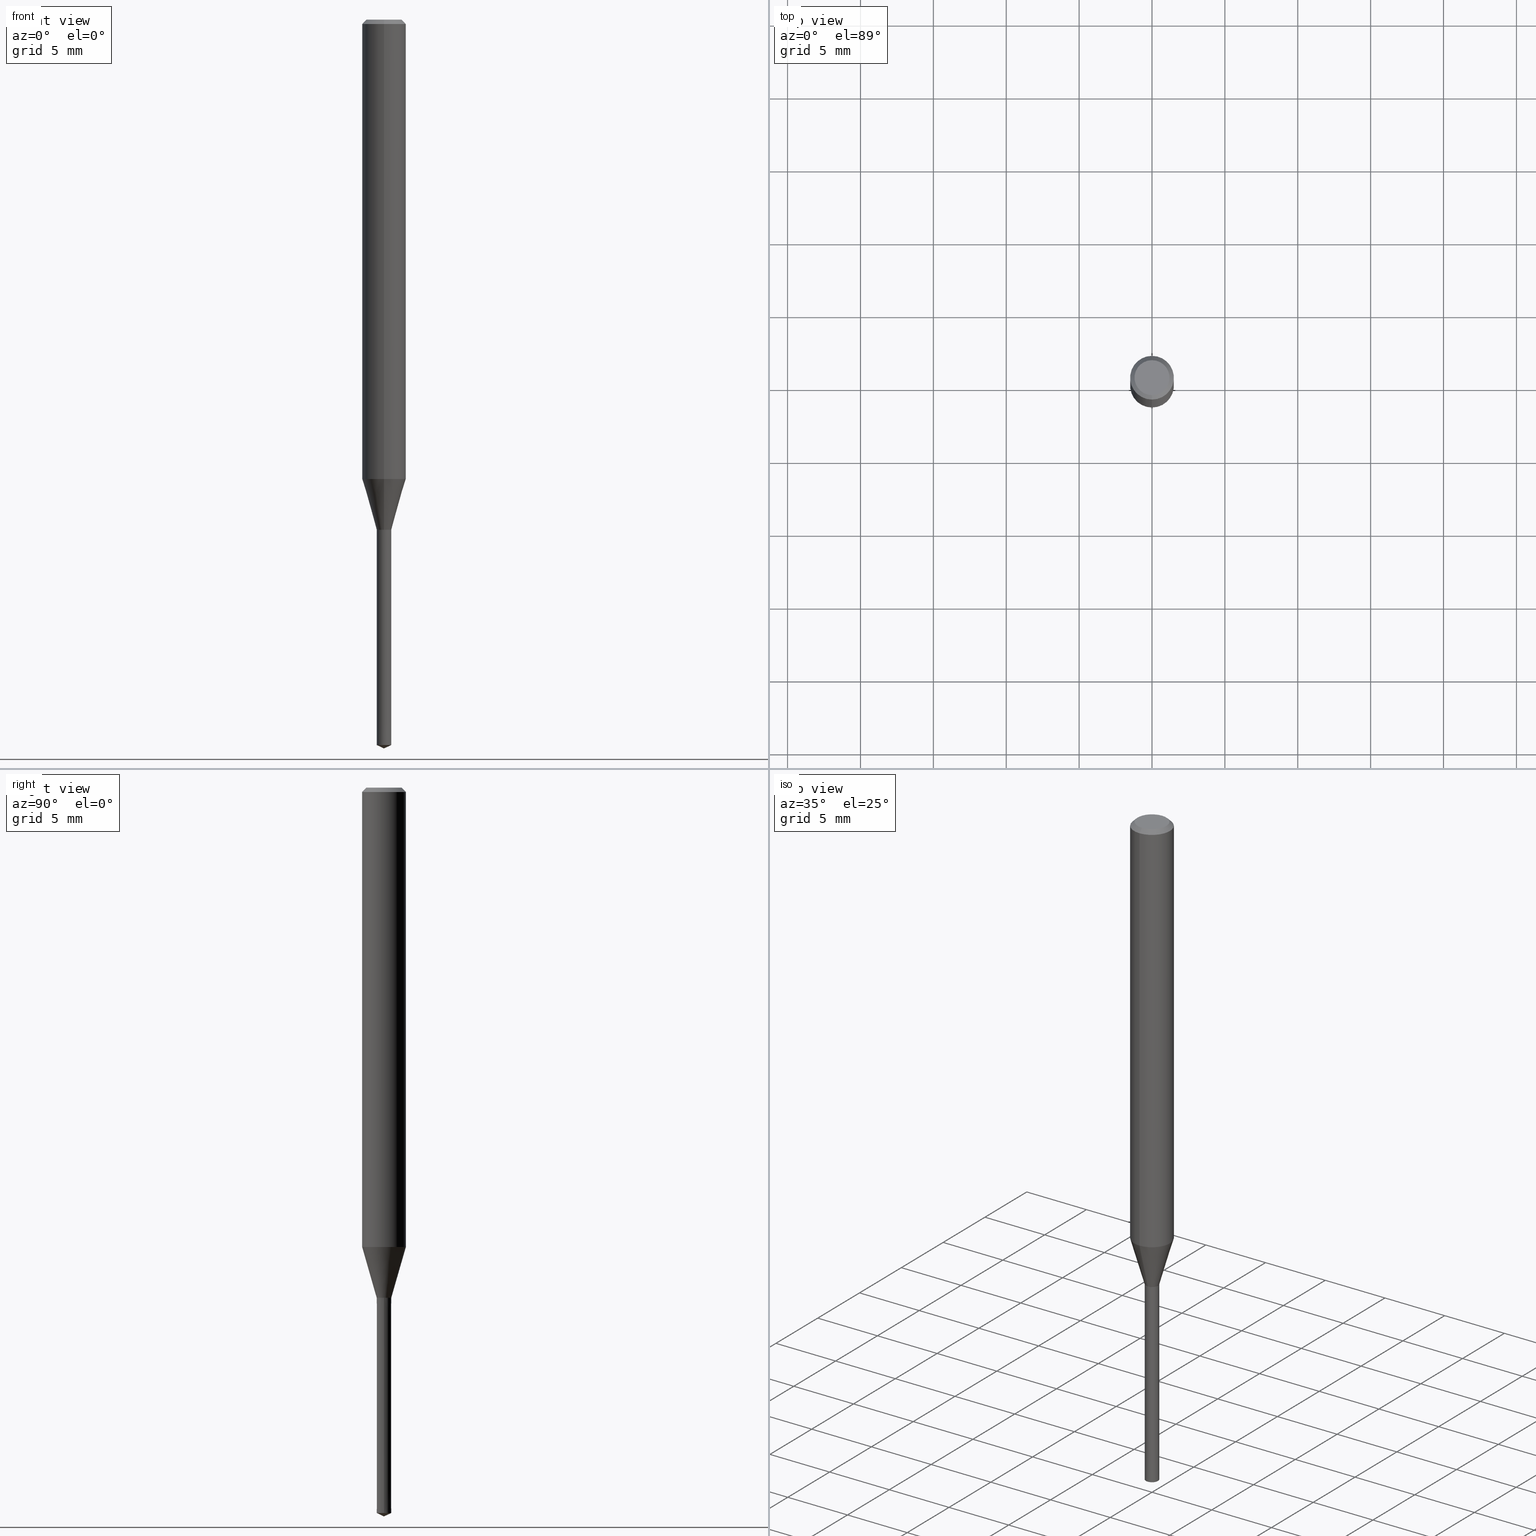
[diagram: canonical four-view strip — front | top / right | iso, engineering-drawing reading convention]
A machine part, canonical four-view strip (front | top / right | iso — engineering-drawing reading convention). The complete STEP part file that produces these views, byte-faithful:
ISO-10303-21;
HEADER;
FILE_DESCRIPTION(('no description'),'unknown implementation level');
FILE_NAME('UTDLX2100-150-Huellk.stp','  ',('CIMSOURCE GmbH'),('CADClick - KiM GmbH - www.kimweb.de'),'unknown preprocess','ACIS','unknown authorization');
FILE_SCHEMA(('automotive_design'));
ENDSEC;
DATA;
#1=MECHANICAL_DESIGN_GEOMETRIC_PRESENTATION_REPRESENTATION(' ',(#14,#15,#16,#17,#18,#19,#20,#21,#22,#23,#24,#25,#26,#27,#28,#29,#30,#31,#32,#33,#34,#35,#36,#37,#38,#39,#40,#41,#42,#43,#44,#45,#46,#47,#48,#49,#50,#51,#52,#53,#54,#55,#56,#57,#58,#59,#60,#61,#62,#63,#64,#65,#66,#67,#68,#69,#70,#71),#10);
#2=PRODUCT_DEFINITION_CONTEXT('',#72,'design');
#3=APPLICATION_PROTOCOL_DEFINITION('INTERNATIONAL STANDARD','automotive_design',1994,#72);
#4=PRODUCT_CATEGORY_RELATIONSHIP('NONE','NONE',#73,#74);
#5=SHAPE_DEFINITION_REPRESENTATION(#75,#76);
#6=PRODUCT_DEFINITION_CONTEXT('',#77,'design');
#7=APPLICATION_PROTOCOL_DEFINITION('INTERNATIONAL STANDARD','automotive_design',1994,#77);
#8=PRODUCT_CATEGORY_RELATIONSHIP('NONE','NONE',#78,#79);
#9=SHAPE_DEFINITION_REPRESENTATION(#80,#81);
#10= (GEOMETRIC_REPRESENTATION_CONTEXT(3)GLOBAL_UNCERTAINTY_ASSIGNED_CONTEXT((#84))GLOBAL_UNIT_ASSIGNED_CONTEXT((#86,#87,#88))REPRESENTATION_CONTEXT('NONE','WORKSPACE'));
#14=STYLED_ITEM('',(#90),#91);
#15=STYLED_ITEM('',(#92),#93);
#16=STYLED_ITEM('',(#94),#95);
#17=STYLED_ITEM('',(#96),#97);
#18=STYLED_ITEM('',(#98),#99);
#19=STYLED_ITEM('',(#100),#101);
#20=STYLED_ITEM('',(#102),#103);
#21=STYLED_ITEM('',(#104),#105);
#22=STYLED_ITEM('',(#106),#107);
#23=STYLED_ITEM('',(#108),#109);
#24=STYLED_ITEM('',(#110),#111);
#25=STYLED_ITEM('',(#112),#113);
#26=STYLED_ITEM('',(#114),#115);
#27=STYLED_ITEM('',(#116),#117);
#28=STYLED_ITEM('',(#118),#119);
#29=STYLED_ITEM('',(#120),#121);
#30=STYLED_ITEM('',(#122),#123);
#31=STYLED_ITEM('',(#124),#125);
#32=STYLED_ITEM('',(#126),#127);
#33=STYLED_ITEM('',(#128),#129);
#34=STYLED_ITEM('',(#130),#131);
#35=STYLED_ITEM('',(#132),#133);
#36=STYLED_ITEM('',(#134),#135);
#37=STYLED_ITEM('',(#136),#137);
#38=STYLED_ITEM('',(#138),#139);
#39=STYLED_ITEM('',(#140),#141);
#40=STYLED_ITEM('',(#142),#143);
#41=STYLED_ITEM('',(#144),#145);
#42=STYLED_ITEM('',(#146),#147);
#43=STYLED_ITEM('',(#148),#149);
#44=STYLED_ITEM('',(#150),#151);
#45=STYLED_ITEM('',(#152),#153);
#46=STYLED_ITEM('',(#154),#155);
#47=STYLED_ITEM('',(#156),#157);
#48=STYLED_ITEM('',(#158),#159);
#49=STYLED_ITEM('',(#160),#161);
#50=STYLED_ITEM('',(#162),#163);
#51=STYLED_ITEM('',(#164),#165);
#52=STYLED_ITEM('',(#166),#167);
#53=STYLED_ITEM('',(#168),#169);
#54=STYLED_ITEM('',(#170),#171);
#55=STYLED_ITEM('',(#172),#173);
#56=STYLED_ITEM('',(#174),#175);
#57=STYLED_ITEM('',(#176),#177);
#58=STYLED_ITEM('',(#178),#179);
#59=STYLED_ITEM('',(#180),#181);
#60=STYLED_ITEM('',(#182),#183);
#61=STYLED_ITEM('',(#184),#185);
#62=STYLED_ITEM('',(#186),#187);
#63=STYLED_ITEM('',(#188),#189);
#64=STYLED_ITEM('',(#190),#191);
#65=STYLED_ITEM('',(#192),#193);
#66=STYLED_ITEM('',(#194),#195);
#67=STYLED_ITEM('',(#196),#197);
#68=STYLED_ITEM('',(#198),#199);
#69=STYLED_ITEM('',(#200),#201);
#70=STYLED_ITEM('',(#202),#203);
#71=STYLED_ITEM('',(#204),#205);
#72=APPLICATION_CONTEXT(' ');
#73=PRODUCT_CATEGORY('part','NONE');
#74=PRODUCT_RELATED_PRODUCT_CATEGORY('detail',' ',(#206));
#75=PRODUCT_DEFINITION_SHAPE('NONE','NONE',#207);
#76=ADVANCED_BREP_SHAPE_REPRESENTATION('1',(#167,#208),#10);
#77=APPLICATION_CONTEXT(' ');
#78=PRODUCT_CATEGORY('part','NONE');
#79=PRODUCT_RELATED_PRODUCT_CATEGORY('detail',' ',(#209));
#80=PRODUCT_DEFINITION_SHAPE('NONE','NONE',#210);
#81=ADVANCED_BREP_SHAPE_REPRESENTATION('2',(#103,#211),#10);
#84=UNCERTAINTY_MEASURE_WITH_UNIT(LENGTH_MEASURE(1.0E-006),#86,'','');
#86= (CONVERSION_BASED_UNIT('MILLIMETRE',#214)LENGTH_UNIT()NAMED_UNIT(#217));
#87= (NAMED_UNIT(#219)PLANE_ANGLE_UNIT()SI_UNIT($,.RADIAN.));
#88= (NAMED_UNIT(#219)SOLID_ANGLE_UNIT()SI_UNIT($,.STERADIAN.));
#90=PRESENTATION_STYLE_ASSIGNMENT((#225));
#91=EDGE_CURVE('',#197,#183,#226,.T.);
#92=PRESENTATION_STYLE_ASSIGNMENT((#227));
#93=ADVANCED_FACE('',(#228),#229,.T.);
#94=PRESENTATION_STYLE_ASSIGNMENT((#230));
#95=EDGE_CURVE('',#141,#195,#231,.T.);
#96=PRESENTATION_STYLE_ASSIGNMENT((#232));
#97=VERTEX_POINT('',#233);
#98=PRESENTATION_STYLE_ASSIGNMENT((#234));
#99=EDGE_CURVE('',#107,#187,#235,.T.);
#100=PRESENTATION_STYLE_ASSIGNMENT((#236));
#101=ADVANCED_FACE('',(#237),#238,.T.);
#102=PRESENTATION_STYLE_ASSIGNMENT((#239));
#103=MANIFOLD_SOLID_BREP('2',#240);
#104=PRESENTATION_STYLE_ASSIGNMENT((#241));
#105=VERTEX_POINT('',#242);
#106=PRESENTATION_STYLE_ASSIGNMENT((#243));
#107=VERTEX_POINT('',#244);
#108=PRESENTATION_STYLE_ASSIGNMENT((#245));
#109=VERTEX_POINT('',#246);
#110=PRESENTATION_STYLE_ASSIGNMENT((#247));
#111=VERTEX_POINT('',#248);
#112=PRESENTATION_STYLE_ASSIGNMENT((#249));
#113=ADVANCED_FACE('',(#250),#251,.T.);
#114=PRESENTATION_STYLE_ASSIGNMENT((#252));
#115=ADVANCED_FACE('',(#253),#254,.T.);
#116=PRESENTATION_STYLE_ASSIGNMENT((#255));
#117=ADVANCED_FACE('',(#256),#257,.T.);
#118=PRESENTATION_STYLE_ASSIGNMENT((#258));
#119=ADVANCED_FACE('',(#259),#260,.T.);
#120=PRESENTATION_STYLE_ASSIGNMENT((#261));
#121=EDGE_CURVE('',#195,#171,#262,.T.);
#122=PRESENTATION_STYLE_ASSIGNMENT((#263));
#123=EDGE_CURVE('',#155,#107,#264,.T.);
#124=PRESENTATION_STYLE_ASSIGNMENT((#265));
#125=VERTEX_POINT('',#266);
#126=PRESENTATION_STYLE_ASSIGNMENT((#267));
#127=EDGE_CURVE('',#195,#165,#268,.T.);
#128=PRESENTATION_STYLE_ASSIGNMENT((#269));
#129=ADVANCED_FACE('',(#270),#271,.T.);
#130=PRESENTATION_STYLE_ASSIGNMENT((#272));
#131=EDGE_CURVE('',#141,#97,#273,.T.);
#132=PRESENTATION_STYLE_ASSIGNMENT((#274));
#133=EDGE_CURVE('',#109,#105,#275,.T.);
#134=PRESENTATION_STYLE_ASSIGNMENT((#276));
#135=EDGE_CURVE('',#165,#139,#277,.T.);
#136=PRESENTATION_STYLE_ASSIGNMENT((#278));
#137=EDGE_CURVE('',#111,#125,#279,.T.);
#138=PRESENTATION_STYLE_ASSIGNMENT((#280));
#139=VERTEX_POINT('',#281);
#140=PRESENTATION_STYLE_ASSIGNMENT((#282));
#141=VERTEX_POINT('',#283);
#142=PRESENTATION_STYLE_ASSIGNMENT((#284));
#143=EDGE_CURVE('',#183,#111,#285,.T.);
#144=PRESENTATION_STYLE_ASSIGNMENT((#286));
#145=ADVANCED_FACE('',(#287),#288,.T.);
#146=PRESENTATION_STYLE_ASSIGNMENT((#289));
#147=ADVANCED_FACE('',(#290),#291,.T.);
#148=PRESENTATION_STYLE_ASSIGNMENT((#292));
#149=EDGE_CURVE('',#171,#195,#293,.T.);
#150=PRESENTATION_STYLE_ASSIGNMENT((#294));
#151=ADVANCED_FACE('',(#295),#296,.T.);
#152=PRESENTATION_STYLE_ASSIGNMENT((#297));
#153=EDGE_CURVE('',#125,#197,#298,.T.);
#154=PRESENTATION_STYLE_ASSIGNMENT((#299));
#155=VERTEX_POINT('',#300);
#156=PRESENTATION_STYLE_ASSIGNMENT((#301));
#157=EDGE_CURVE('',#105,#109,#302,.T.);
#158=PRESENTATION_STYLE_ASSIGNMENT((#303));
#159=EDGE_CURVE('',#155,#187,#304,.T.);
#160=PRESENTATION_STYLE_ASSIGNMENT((#305));
#161=EDGE_CURVE('',#197,#139,#306,.T.);
#162=PRESENTATION_STYLE_ASSIGNMENT((#307));
#163=EDGE_CURVE('',#139,#171,#308,.T.);
#164=PRESENTATION_STYLE_ASSIGNMENT((#309));
#165=VERTEX_POINT('',#310);
#166=PRESENTATION_STYLE_ASSIGNMENT((#311));
#167=MANIFOLD_SOLID_BREP('1',#312);
#168=PRESENTATION_STYLE_ASSIGNMENT((#313));
#169=EDGE_CURVE('',#171,#97,#314,.T.);
#170=PRESENTATION_STYLE_ASSIGNMENT((#315));
#171=VERTEX_POINT('',#316);
#172=PRESENTATION_STYLE_ASSIGNMENT((#317));
#173=ADVANCED_FACE('',(#318),#319,.T.);
#174=PRESENTATION_STYLE_ASSIGNMENT((#320));
#175=EDGE_CURVE('',#125,#111,#321,.T.);
#176=PRESENTATION_STYLE_ASSIGNMENT((#322));
#177=EDGE_CURVE('',#187,#109,#323,.T.);
#178=PRESENTATION_STYLE_ASSIGNMENT((#324));
#179=ADVANCED_FACE('',(#325),#326,.T.);
#180=PRESENTATION_STYLE_ASSIGNMENT((#327));
#181=ADVANCED_FACE('',(#328),#329,.T.);
#182=PRESENTATION_STYLE_ASSIGNMENT((#330));
#183=VERTEX_POINT('',#331);
#184=PRESENTATION_STYLE_ASSIGNMENT((#332));
#185=EDGE_CURVE('',#139,#165,#333,.T.);
#186=PRESENTATION_STYLE_ASSIGNMENT((#334));
#187=VERTEX_POINT('',#335);
#188=PRESENTATION_STYLE_ASSIGNMENT((#336));
#189=ADVANCED_FACE('',(#337),#338,.T.);
#190=PRESENTATION_STYLE_ASSIGNMENT((#339));
#191=EDGE_CURVE('',#183,#197,#340,.T.);
#192=PRESENTATION_STYLE_ASSIGNMENT((#341));
#193=EDGE_CURVE('',#105,#155,#342,.T.);
#194=PRESENTATION_STYLE_ASSIGNMENT((#343));
#195=VERTEX_POINT('',#344);
#196=PRESENTATION_STYLE_ASSIGNMENT((#345));
#197=VERTEX_POINT('',#346);
#198=PRESENTATION_STYLE_ASSIGNMENT((#347));
#199=EDGE_CURVE('',#187,#155,#348,.T.);
#200=PRESENTATION_STYLE_ASSIGNMENT((#349));
#201=EDGE_CURVE('',#165,#183,#350,.T.);
#202=PRESENTATION_STYLE_ASSIGNMENT((#351));
#203=EDGE_CURVE('',#97,#141,#352,.T.);
#204=PRESENTATION_STYLE_ASSIGNMENT((#353));
#205=ADVANCED_FACE('',(#354),#355,.T.);
#206=PRODUCT('1','1','PART-1-DESC',(#356));
#207=PRODUCT_DEFINITION('NONE','NONE',#357,#2);
#208=AXIS2_PLACEMENT_3D('',#358,#359,#360);
#209=PRODUCT('2','2','PART-2-DESC',(#361));
#210=PRODUCT_DEFINITION('NONE','NONE',#362,#6);
#211=AXIS2_PLACEMENT_3D('',#363,#364,#365);
#214=LENGTH_MEASURE_WITH_UNIT(LENGTH_MEASURE(1.0),#366);
#217=DIMENSIONAL_EXPONENTS(1.0,0.0,0.0,0.0,0.0,0.0,0.0);
#219=DIMENSIONAL_EXPONENTS(0.0,0.0,0.0,0.0,0.0,0.0,0.0);
#225=CURVE_STYLE('',#367,POSITIVE_LENGTH_MEASURE(1.0E-006),#368);
#226=CIRCLE('',#369,1.5);
#227=SURFACE_STYLE_USAGE(.BOTH.,#370);
#228=FACE_OUTER_BOUND('',#371,.T.);
#229=CONICAL_SURFACE('',#372,1.0,0.279349998205856);
#230=CURVE_STYLE('',#373,POSITIVE_LENGTH_MEASURE(1.0E-006),#374);
#231=LINE('',#375,#376);
#232=POINT_STYLE(' ',#377,POSITIVE_LENGTH_MEASURE(1.0E-006),#378);
#233=CARTESIAN_POINT('',(0.0,0.5005,-35.0));
#234=CURVE_STYLE('',#379,POSITIVE_LENGTH_MEASURE(1.0E-006),#380);
#235=LINE('',#381,#382);
#236=SURFACE_STYLE_USAGE(.BOTH.,#383);
#237=FACE_OUTER_BOUND('',#384,.T.);
#238=CONICAL_SURFACE('',#385,0.25,1.13446401228084);
#239=SURFACE_STYLE_USAGE(.BOTH.,#386);
#240=CLOSED_SHELL('',(#173,#179,#151,#205,#101));
#241=POINT_STYLE(' ',#387,POSITIVE_LENGTH_MEASURE(1.0E-006),#388);
#242=CARTESIAN_POINT('',(-0.501,0.0,-35.0));
#243=POINT_STYLE(' ',#389,POSITIVE_LENGTH_MEASURE(1.0E-006),#390);
#244=CARTESIAN_POINT('',(0.0,0.0,-50.0));
#245=POINT_STYLE(' ',#391,POSITIVE_LENGTH_MEASURE(1.0E-006),#392);
#246=CARTESIAN_POINT('',(0.501,6.13527783265011E-017,-35.0));
#247=POINT_STYLE(' ',#393,POSITIVE_LENGTH_MEASURE(1.0E-006),#394);
#248=CARTESIAN_POINT('',(1.46952762458685E-016,-1.2,0.0));
#249=SURFACE_STYLE_USAGE(.BOTH.,#395);
#250=FACE_OUTER_BOUND('',#396,.T.);
#251=CONICAL_SURFACE('',#397,0.50025,0.52359877559836);
#252=SURFACE_STYLE_USAGE(.BOTH.,#398);
#253=FACE_OUTER_BOUND('',#399,.T.);
#254=CONICAL_SURFACE('',#400,0.50025,0.52359877559836);
#255=SURFACE_STYLE_USAGE(.BOTH.,#401);
#256=FACE_OUTER_BOUND('',#402,.T.);
#257=CONICAL_SURFACE('',#403,1.35,0.785398163397447);
#258=SURFACE_STYLE_USAGE(.BOTH.,#404);
#259=FACE_OUTER_BOUND('',#405,.T.);
#260=CYLINDRICAL_SURFACE('',#406,1.5);
#261=CURVE_STYLE('',#407,POSITIVE_LENGTH_MEASURE(1.0E-006),#408);
#262=CIRCLE('',#409,0.5);
#263=CURVE_STYLE('',#410,POSITIVE_LENGTH_MEASURE(1.0E-006),#411);
#264=LINE('',#412,#413);
#265=POINT_STYLE(' ',#414,POSITIVE_LENGTH_MEASURE(1.0E-006),#415);
#266=CARTESIAN_POINT('',(0.0,1.2,0.0));
#267=CURVE_STYLE('',#416,POSITIVE_LENGTH_MEASURE(1.0E-006),#417);
#268=LINE('',#418,#419);
#269=SURFACE_STYLE_USAGE(.BOTH.,#420);
#270=FACE_OUTER_BOUND('',#421,.T.);
#271=PLANE('',#422);
#272=CURVE_STYLE('',#423,POSITIVE_LENGTH_MEASURE(1.0E-006),#424);
#273=CIRCLE('',#425,0.5005);
#274=CURVE_STYLE('',#426,POSITIVE_LENGTH_MEASURE(1.0E-006),#427);
#275=CIRCLE('',#428,0.501);
#276=CURVE_STYLE('',#429,POSITIVE_LENGTH_MEASURE(1.0E-006),#430);
#277=CIRCLE('',#431,1.5);
#278=CURVE_STYLE('',#432,POSITIVE_LENGTH_MEASURE(1.0E-006),#433);
#279=CIRCLE('',#434,1.2);
#280=POINT_STYLE(' ',#435,POSITIVE_LENGTH_MEASURE(1.0E-006),#436);
#281=CARTESIAN_POINT('',(0.0,1.5,-31.513));
#282=POINT_STYLE(' ',#437,POSITIVE_LENGTH_MEASURE(1.0E-006),#438);
#283=CARTESIAN_POINT('',(6.129154800881E-017,-0.5005,-35.0));
#284=CURVE_STYLE('',#439,POSITIVE_LENGTH_MEASURE(1.0E-006),#440);
#285=LINE('',#441,#442);
#286=SURFACE_STYLE_USAGE(.BOTH.,#443);
#287=FACE_OUTER_BOUND('',#444,.T.);
#288=CYLINDRICAL_SURFACE('',#445,1.5);
#289=SURFACE_STYLE_USAGE(.BOTH.,#446);
#290=FACE_OUTER_BOUND('',#447,.T.);
#291=CONICAL_SURFACE('',#448,1.0,0.279349998205856);
#292=CURVE_STYLE('',#449,POSITIVE_LENGTH_MEASURE(1.0E-006),#450);
#293=CIRCLE('',#451,0.5);
#294=SURFACE_STYLE_USAGE(.BOTH.,#452);
#295=FACE_OUTER_BOUND('',#453,.T.);
#296=PLANE('',#454);
#297=CURVE_STYLE('',#455,POSITIVE_LENGTH_MEASURE(1.0E-006),#456);
#298=LINE('',#457,#458);
#299=POINT_STYLE(' ',#459,POSITIVE_LENGTH_MEASURE(1.0E-006),#460);
#300=CARTESIAN_POINT('',(-0.5,0.0,-49.76684617));
#301=CURVE_STYLE('',#461,POSITIVE_LENGTH_MEASURE(1.0E-006),#462);
#302=CIRCLE('',#463,0.501);
#303=CURVE_STYLE('',#464,POSITIVE_LENGTH_MEASURE(1.0E-006),#465);
#304=CIRCLE('',#466,0.5);
#305=CURVE_STYLE('',#467,POSITIVE_LENGTH_MEASURE(1.0E-006),#468);
#306=LINE('',#469,#470);
#307=CURVE_STYLE('',#471,POSITIVE_LENGTH_MEASURE(1.0E-006),#472);
#308=LINE('',#473,#474);
#309=POINT_STYLE(' ',#475,POSITIVE_LENGTH_MEASURE(1.0E-006),#476);
#310=CARTESIAN_POINT('',(1.83690953073357E-016,-1.5,-31.513));
#311=SURFACE_STYLE_USAGE(.BOTH.,#477);
#312=CLOSED_SHELL('',(#115,#147,#145,#181,#129,#117,#119,#93,#113,#189));
#313=CURVE_STYLE('',#478,POSITIVE_LENGTH_MEASURE(1.0E-006),#479);
#314=LINE('',#480,#481);
#315=POINT_STYLE(' ',#482,POSITIVE_LENGTH_MEASURE(1.0E-006),#483);
#316=CARTESIAN_POINT('',(0.0,0.5,-34.9991339745962));
#317=SURFACE_STYLE_USAGE(.BOTH.,#484);
#318=FACE_OUTER_BOUND('',#485,.T.);
#319=CONICAL_SURFACE('',#486,0.25,1.13446401228084);
#320=CURVE_STYLE('',#487,POSITIVE_LENGTH_MEASURE(1.0E-006),#488);
#321=CIRCLE('',#489,1.2);
#322=CURVE_STYLE('',#490,POSITIVE_LENGTH_MEASURE(1.0E-006),#491);
#323=LINE('',#492,#493);
#324=SURFACE_STYLE_USAGE(.BOTH.,#494);
#325=FACE_OUTER_BOUND('',#495,.T.);
#326=CONICAL_SURFACE('',#496,0.5005,6.77192669957479E-005);
#327=SURFACE_STYLE_USAGE(.BOTH.,#497);
#328=FACE_OUTER_BOUND('',#498,.T.);
#329=CONICAL_SURFACE('',#499,1.35,0.785398163397447);
#330=POINT_STYLE(' ',#500,POSITIVE_LENGTH_MEASURE(1.0E-006),#501);
#331=CARTESIAN_POINT('',(1.83690953073357E-016,-1.5,-0.300000000000001));
#332=CURVE_STYLE('',#502,POSITIVE_LENGTH_MEASURE(1.0E-006),#503);
#333=CIRCLE('',#504,1.5);
#334=POINT_STYLE(' ',#505,POSITIVE_LENGTH_MEASURE(1.0E-006),#506);
#335=CARTESIAN_POINT('',(0.5,6.12303176911189E-017,-49.76684617));
#336=SURFACE_STYLE_USAGE(.BOTH.,#507);
#337=FACE_OUTER_BOUND('',#508,.T.);
#338=PLANE('',#509);
#339=CURVE_STYLE('',#510,POSITIVE_LENGTH_MEASURE(1.0E-006),#511);
#340=CIRCLE('',#512,1.5);
#341=CURVE_STYLE('',#513,POSITIVE_LENGTH_MEASURE(1.0E-006),#514);
#342=LINE('',#515,#516);
#343=POINT_STYLE(' ',#517,POSITIVE_LENGTH_MEASURE(1.0E-006),#518);
#344=CARTESIAN_POINT('',(6.12303176911189E-017,-0.5,-34.9991339745962));
#345=POINT_STYLE(' ',#519,POSITIVE_LENGTH_MEASURE(1.0E-006),#520);
#346=CARTESIAN_POINT('',(0.0,1.5,-0.300000000000001));
#347=CURVE_STYLE('',#521,POSITIVE_LENGTH_MEASURE(1.0E-006),#522);
#348=CIRCLE('',#523,0.5);
#349=CURVE_STYLE('',#524,POSITIVE_LENGTH_MEASURE(1.0E-006),#525);
#350=LINE('',#526,#527);
#351=CURVE_STYLE('',#528,POSITIVE_LENGTH_MEASURE(1.0E-006),#529);
#352=CIRCLE('',#530,0.5005);
#353=SURFACE_STYLE_USAGE(.BOTH.,#531);
#354=FACE_OUTER_BOUND('',#532,.T.);
#355=CONICAL_SURFACE('',#533,0.5005,6.77192669957479E-005);
#356=PRODUCT_CONTEXT('',#72,'mechanical');
#357=PRODUCT_DEFINITION_FORMATION_WITH_SPECIFIED_SOURCE(' ','NONE',#206,.NOT_KNOWN.);
#358=CARTESIAN_POINT('',(0.0,0.0,0.0));
#359=DIRECTION('',(0.0,0.0,1.0));
#360=DIRECTION('',(1.0,0.0,0.0));
#361=PRODUCT_CONTEXT('',#77,'mechanical');
#362=PRODUCT_DEFINITION_FORMATION_WITH_SPECIFIED_SOURCE(' ','NONE',#209,.NOT_KNOWN.);
#363=CARTESIAN_POINT('',(0.0,0.0,0.0));
#364=DIRECTION('',(0.0,0.0,1.0));
#365=DIRECTION('',(1.0,0.0,0.0));
#366= (NAMED_UNIT(#217)LENGTH_UNIT()SI_UNIT(.MILLI.,.METRE.));
#367=DRAUGHTING_PRE_DEFINED_CURVE_FONT('continuous');
#368=COLOUR_RGB('',0.498039215803146,0.498039215803146,0.498039215803146);
#369=AXIS2_PLACEMENT_3D('',#535,#536,#537);
#370=SURFACE_SIDE_STYLE('',(#538));
#371=EDGE_LOOP('',(#539,#540,#541,#542));
#372=AXIS2_PLACEMENT_3D('',#543,#544,#545);
#373=DRAUGHTING_PRE_DEFINED_CURVE_FONT('continuous');
#374=COLOUR_RGB('',0.498039215803146,0.498039215803146,0.498039215803146);
#375=CARTESIAN_POINT('',(6.12609328499644E-017,-0.50025,-34.9995669872981));
#376=VECTOR('',#546,1.0);
#377=PRE_DEFINED_MARKER('');
#378=COLOUR_RGB('',0.498039215803146,0.498039215803146,0.498039215803146);
#379=DRAUGHTING_PRE_DEFINED_CURVE_FONT('continuous');
#380=COLOUR_RGB('',0.800000011920929,0.800000011920929,0.800000011920929);
#381=CARTESIAN_POINT('',(0.25,3.06151588455594E-017,-49.883423085));
#382=VECTOR('',#547,1.0);
#383=SURFACE_SIDE_STYLE('',(#548));
#384=EDGE_LOOP('',(#549,#550,#551));
#385=AXIS2_PLACEMENT_3D('',#552,#553,#554);
#386=SURFACE_SIDE_STYLE('',(#555));
#387=PRE_DEFINED_MARKER('');
#388=COLOUR_RGB('',0.800000011920929,0.800000011920929,0.800000011920929);
#389=PRE_DEFINED_MARKER('');
#390=COLOUR_RGB('',0.800000011920929,0.800000011920929,0.800000011920929);
#391=PRE_DEFINED_MARKER('');
#392=COLOUR_RGB('',0.800000011920929,0.800000011920929,0.800000011920929);
#393=PRE_DEFINED_MARKER('');
#394=COLOUR_RGB('',0.498039215803146,0.498039215803146,0.498039215803146);
#395=SURFACE_SIDE_STYLE('',(#556));
#396=EDGE_LOOP('',(#557,#558,#559,#560));
#397=AXIS2_PLACEMENT_3D('',#561,#562,#563);
#398=SURFACE_SIDE_STYLE('',(#564));
#399=EDGE_LOOP('',(#565,#566,#567,#568));
#400=AXIS2_PLACEMENT_3D('',#569,#570,#571);
#401=SURFACE_SIDE_STYLE('',(#572));
#402=EDGE_LOOP('',(#573,#574,#575,#576));
#403=AXIS2_PLACEMENT_3D('',#577,#578,#579);
#404=SURFACE_SIDE_STYLE('',(#580));
#405=EDGE_LOOP('',(#581,#582,#583,#584));
#406=AXIS2_PLACEMENT_3D('',#585,#586,#587);
#407=DRAUGHTING_PRE_DEFINED_CURVE_FONT('continuous');
#408=COLOUR_RGB('',0.498039215803146,0.498039215803146,0.498039215803146);
#409=AXIS2_PLACEMENT_3D('',#588,#589,#590);
#410=DRAUGHTING_PRE_DEFINED_CURVE_FONT('continuous');
#411=COLOUR_RGB('',0.800000011920929,0.800000011920929,0.800000011920929);
#412=CARTESIAN_POINT('',(-0.25,-3.06151588455594E-017,-49.883423085));
#413=VECTOR('',#591,1.0);
#414=PRE_DEFINED_MARKER('');
#415=COLOUR_RGB('',0.498039215803146,0.498039215803146,0.498039215803146);
#416=DRAUGHTING_PRE_DEFINED_CURVE_FONT('continuous');
#417=COLOUR_RGB('',0.498039215803146,0.498039215803146,0.498039215803146);
#418=CARTESIAN_POINT('',(1.22460635382238E-016,-1.0,-33.2560669872981));
#419=VECTOR('',#592,1.0);
#420=SURFACE_SIDE_STYLE('',(#593));
#421=EDGE_LOOP('',(#594,#595));
#422=AXIS2_PLACEMENT_3D('',#596,#597,#598);
#423=DRAUGHTING_PRE_DEFINED_CURVE_FONT('continuous');
#424=COLOUR_RGB('',0.498039215803146,0.498039215803146,0.498039215803146);
#425=AXIS2_PLACEMENT_3D('',#599,#600,#601);
#426=DRAUGHTING_PRE_DEFINED_CURVE_FONT('continuous');
#427=COLOUR_RGB('',0.800000011920929,0.800000011920929,0.800000011920929);
#428=AXIS2_PLACEMENT_3D('',#602,#603,#604);
#429=DRAUGHTING_PRE_DEFINED_CURVE_FONT('continuous');
#430=COLOUR_RGB('',0.498039215803146,0.498039215803146,0.498039215803146);
#431=AXIS2_PLACEMENT_3D('',#605,#606,#607);
#432=DRAUGHTING_PRE_DEFINED_CURVE_FONT('continuous');
#433=COLOUR_RGB('',0.498039215803146,0.498039215803146,0.498039215803146);
#434=AXIS2_PLACEMENT_3D('',#608,#609,#610);
#435=PRE_DEFINED_MARKER('');
#436=COLOUR_RGB('',0.498039215803146,0.498039215803146,0.498039215803146);
#437=PRE_DEFINED_MARKER('');
#438=COLOUR_RGB('',0.498039215803146,0.498039215803146,0.498039215803146);
#439=DRAUGHTING_PRE_DEFINED_CURVE_FONT('continuous');
#440=COLOUR_RGB('',0.498039215803146,0.498039215803146,0.498039215803146);
#441=CARTESIAN_POINT('',(1.65321857766021E-016,-1.35,-0.150000000000002));
#442=VECTOR('',#611,1.0);
#443=SURFACE_SIDE_STYLE('',(#612));
#444=EDGE_LOOP('',(#613,#614,#615,#616));
#445=AXIS2_PLACEMENT_3D('',#617,#618,#619);
#446=SURFACE_SIDE_STYLE('',(#620));
#447=EDGE_LOOP('',(#621,#622,#623,#624));
#448=AXIS2_PLACEMENT_3D('',#625,#626,#627);
#449=DRAUGHTING_PRE_DEFINED_CURVE_FONT('continuous');
#450=COLOUR_RGB('',0.498039215803146,0.498039215803146,0.498039215803146);
#451=AXIS2_PLACEMENT_3D('',#628,#629,#630);
#452=SURFACE_SIDE_STYLE('',(#631));
#453=EDGE_LOOP('',(#632,#633));
#454=AXIS2_PLACEMENT_3D('',#634,#635,#636);
#455=DRAUGHTING_PRE_DEFINED_CURVE_FONT('continuous');
#456=COLOUR_RGB('',0.498039215803146,0.498039215803146,0.498039215803146);
#457=CARTESIAN_POINT('',(-1.65321857766021E-016,1.35,-0.150000000000002));
#458=VECTOR('',#637,1.0);
#459=PRE_DEFINED_MARKER('');
#460=COLOUR_RGB('',0.800000011920929,0.800000011920929,0.800000011920929);
#461=DRAUGHTING_PRE_DEFINED_CURVE_FONT('continuous');
#462=COLOUR_RGB('',0.800000011920929,0.800000011920929,0.800000011920929);
#463=AXIS2_PLACEMENT_3D('',#638,#639,#640);
#464=DRAUGHTING_PRE_DEFINED_CURVE_FONT('continuous');
#465=COLOUR_RGB('',0.800000011920929,0.800000011920929,0.800000011920929);
#466=AXIS2_PLACEMENT_3D('',#641,#642,#643);
#467=DRAUGHTING_PRE_DEFINED_CURVE_FONT('continuous');
#468=COLOUR_RGB('',0.498039215803146,0.498039215803146,0.498039215803146);
#469=CARTESIAN_POINT('',(-1.83690953073357E-016,1.5,-15.9065));
#470=VECTOR('',#644,1.0);
#471=DRAUGHTING_PRE_DEFINED_CURVE_FONT('continuous');
#472=COLOUR_RGB('',0.498039215803146,0.498039215803146,0.498039215803146);
#473=CARTESIAN_POINT('',(-1.22460635382238E-016,1.0,-33.2560669872981));
#474=VECTOR('',#645,1.0);
#475=PRE_DEFINED_MARKER('');
#476=COLOUR_RGB('',0.498039215803146,0.498039215803146,0.498039215803146);
#477=SURFACE_SIDE_STYLE('',(#646));
#478=DRAUGHTING_PRE_DEFINED_CURVE_FONT('continuous');
#479=COLOUR_RGB('',0.498039215803146,0.498039215803146,0.498039215803146);
#480=CARTESIAN_POINT('',(-6.12609328499644E-017,0.50025,-34.9995669872981));
#481=VECTOR('',#647,1.0);
#482=PRE_DEFINED_MARKER('');
#483=COLOUR_RGB('',0.498039215803146,0.498039215803146,0.498039215803146);
#484=SURFACE_SIDE_STYLE('',(#648));
#485=EDGE_LOOP('',(#649,#650,#651));
#486=AXIS2_PLACEMENT_3D('',#652,#653,#654);
#487=DRAUGHTING_PRE_DEFINED_CURVE_FONT('continuous');
#488=COLOUR_RGB('',0.498039215803146,0.498039215803146,0.498039215803146);
#489=AXIS2_PLACEMENT_3D('',#655,#656,#657);
#490=DRAUGHTING_PRE_DEFINED_CURVE_FONT('continuous');
#491=COLOUR_RGB('',0.800000011920929,0.800000011920929,0.800000011920929);
#492=CARTESIAN_POINT('',(0.5005,6.129154800881E-017,-42.383423085));
#493=VECTOR('',#658,1.0);
#494=SURFACE_SIDE_STYLE('',(#659));
#495=EDGE_LOOP('',(#660,#661,#662,#663));
#496=AXIS2_PLACEMENT_3D('',#664,#665,#666);
#497=SURFACE_SIDE_STYLE('',(#667));
#498=EDGE_LOOP('',(#668,#669,#670,#671));
#499=AXIS2_PLACEMENT_3D('',#672,#673,#674);
#500=PRE_DEFINED_MARKER('');
#501=COLOUR_RGB('',0.498039215803146,0.498039215803146,0.498039215803146);
#502=DRAUGHTING_PRE_DEFINED_CURVE_FONT('continuous');
#503=COLOUR_RGB('',0.498039215803146,0.498039215803146,0.498039215803146);
#504=AXIS2_PLACEMENT_3D('',#675,#676,#677);
#505=PRE_DEFINED_MARKER('');
#506=COLOUR_RGB('',0.800000011920929,0.800000011920929,0.800000011920929);
#507=SURFACE_SIDE_STYLE('',(#678));
#508=EDGE_LOOP('',(#679,#680));
#509=AXIS2_PLACEMENT_3D('',#681,#682,#683);
#510=DRAUGHTING_PRE_DEFINED_CURVE_FONT('continuous');
#511=COLOUR_RGB('',0.498039215803146,0.498039215803146,0.498039215803146);
#512=AXIS2_PLACEMENT_3D('',#684,#685,#686);
#513=DRAUGHTING_PRE_DEFINED_CURVE_FONT('continuous');
#514=COLOUR_RGB('',0.800000011920929,0.800000011920929,0.800000011920929);
#515=CARTESIAN_POINT('',(-0.5005,-6.129154800881E-017,-42.383423085));
#516=VECTOR('',#687,1.0);
#517=PRE_DEFINED_MARKER('');
#518=COLOUR_RGB('',0.498039215803146,0.498039215803146,0.498039215803146);
#519=PRE_DEFINED_MARKER('');
#520=COLOUR_RGB('',0.498039215803146,0.498039215803146,0.498039215803146);
#521=DRAUGHTING_PRE_DEFINED_CURVE_FONT('continuous');
#522=COLOUR_RGB('',0.800000011920929,0.800000011920929,0.800000011920929);
#523=AXIS2_PLACEMENT_3D('',#688,#689,#690);
#524=DRAUGHTING_PRE_DEFINED_CURVE_FONT('continuous');
#525=COLOUR_RGB('',0.498039215803146,0.498039215803146,0.498039215803146);
#526=CARTESIAN_POINT('',(1.83690953073357E-016,-1.5,-15.9065));
#527=VECTOR('',#691,1.0);
#528=DRAUGHTING_PRE_DEFINED_CURVE_FONT('continuous');
#529=COLOUR_RGB('',0.498039215803146,0.498039215803146,0.498039215803146);
#530=AXIS2_PLACEMENT_3D('',#692,#693,#694);
#531=SURFACE_SIDE_STYLE('',(#695));
#532=EDGE_LOOP('',(#696,#697,#698,#699));
#533=AXIS2_PLACEMENT_3D('',#700,#701,#702);
#535=CARTESIAN_POINT('',(0.0,0.0,-0.300000000000001));
#536=DIRECTION('',(0.0,0.0,-1.0));
#537=DIRECTION('',(0.0,1.0,0.0));
#538=SURFACE_STYLE_FILL_AREA(#703);
#539=ORIENTED_EDGE('',*,*,#163,.T.);
#540=ORIENTED_EDGE('',*,*,#121,.F.);
#541=ORIENTED_EDGE('',*,*,#127,.T.);
#542=ORIENTED_EDGE('',*,*,#135,.T.);
#543=CARTESIAN_POINT('',(0.0,0.0,-33.2560669872981));
#544=DIRECTION('',(-0.0,-0.0,1.0));
#545=DIRECTION('',(0.0,1.0,0.0));
#546=DIRECTION('',(-6.12303176911254E-017,0.500000000000053,0.866025403784408));
#547=DIRECTION('',(0.906307786396184,1.10987027373946E-016,0.422618263114183));
#548=SURFACE_STYLE_FILL_AREA(#704);
#549=ORIENTED_EDGE('',*,*,#99,.T.);
#550=ORIENTED_EDGE('',*,*,#199,.T.);
#551=ORIENTED_EDGE('',*,*,#123,.T.);
#552=CARTESIAN_POINT('',(0.0,0.0,-49.883423085));
#553=DIRECTION('',(-0.0,-0.0,1.0));
#554=DIRECTION('',(-1.0,0.0,0.0));
#555=SURFACE_STYLE_FILL_AREA(#705);
#556=SURFACE_STYLE_FILL_AREA(#706);
#557=ORIENTED_EDGE('',*,*,#169,.T.);
#558=ORIENTED_EDGE('',*,*,#131,.F.);
#559=ORIENTED_EDGE('',*,*,#95,.T.);
#560=ORIENTED_EDGE('',*,*,#121,.T.);
#561=CARTESIAN_POINT('',(0.0,0.0,-34.9995669872981));
#562=DIRECTION('',(0.0,-0.0,-1.0));
#563=DIRECTION('',(0.0,1.0,0.0));
#564=SURFACE_STYLE_FILL_AREA(#707);
#565=ORIENTED_EDGE('',*,*,#169,.F.);
#566=ORIENTED_EDGE('',*,*,#149,.T.);
#567=ORIENTED_EDGE('',*,*,#95,.F.);
#568=ORIENTED_EDGE('',*,*,#203,.F.);
#569=CARTESIAN_POINT('',(0.0,0.0,-34.9995669872981));
#570=DIRECTION('',(0.0,-0.0,-1.0));
#571=DIRECTION('',(0.0,1.0,0.0));
#572=SURFACE_STYLE_FILL_AREA(#708);
#573=ORIENTED_EDGE('',*,*,#153,.T.);
#574=ORIENTED_EDGE('',*,*,#191,.F.);
#575=ORIENTED_EDGE('',*,*,#143,.T.);
#576=ORIENTED_EDGE('',*,*,#137,.T.);
#577=CARTESIAN_POINT('',(0.0,0.0,-0.150000000000002));
#578=DIRECTION('',(0.0,-0.0,-1.0));
#579=DIRECTION('',(0.0,1.0,0.0));
#580=SURFACE_STYLE_FILL_AREA(#709);
#581=ORIENTED_EDGE('',*,*,#161,.T.);
#582=ORIENTED_EDGE('',*,*,#135,.F.);
#583=ORIENTED_EDGE('',*,*,#201,.T.);
#584=ORIENTED_EDGE('',*,*,#191,.T.);
#585=CARTESIAN_POINT('',(0.0,0.0,-15.9065));
#586=DIRECTION('',(-0.0,-0.0,1.0));
#587=DIRECTION('',(0.0,1.0,0.0));
#588=CARTESIAN_POINT('',(0.0,0.0,-34.9991339745962));
#589=DIRECTION('',(0.0,0.0,-1.0));
#590=DIRECTION('',(0.0,1.0,0.0));
#591=DIRECTION('',(0.906307786396184,1.10987027373946E-016,-0.422618263114183));
#592=DIRECTION('',(3.37661815108076E-017,-0.275730902468478,0.961234866941435));
#593=SURFACE_STYLE_FILL_AREA(#710);
#594=ORIENTED_EDGE('',*,*,#175,.F.);
#595=ORIENTED_EDGE('',*,*,#137,.F.);
#596=CARTESIAN_POINT('',(0.0,0.6,0.0));
#597=DIRECTION('',(-0.0,0.0,1.0));
#598=DIRECTION('',(0.0,-1.0,0.0));
#599=CARTESIAN_POINT('',(0.0,0.0,-35.0));
#600=DIRECTION('',(0.0,0.0,-1.0));
#601=DIRECTION('',(0.0,1.0,0.0));
#602=CARTESIAN_POINT('',(0.0,0.0,-35.0));
#603=DIRECTION('',(0.0,0.0,-1.0));
#604=DIRECTION('',(-1.0,0.0,0.0));
#605=CARTESIAN_POINT('',(0.0,0.0,-31.513));
#606=DIRECTION('',(0.0,0.0,-1.0));
#607=DIRECTION('',(0.0,1.0,0.0));
#608=CARTESIAN_POINT('',(0.0,0.0,0.0));
#609=DIRECTION('',(0.0,0.0,-1.0));
#610=DIRECTION('',(0.0,1.0,0.0));
#611=DIRECTION('',(-8.65927457071934E-017,0.707106781186546,0.707106781186549));
#612=SURFACE_STYLE_FILL_AREA(#711);
#613=ORIENTED_EDGE('',*,*,#161,.F.);
#614=ORIENTED_EDGE('',*,*,#91,.T.);
#615=ORIENTED_EDGE('',*,*,#201,.F.);
#616=ORIENTED_EDGE('',*,*,#185,.F.);
#617=CARTESIAN_POINT('',(0.0,0.0,-15.9065));
#618=DIRECTION('',(-0.0,-0.0,1.0));
#619=DIRECTION('',(0.0,1.0,0.0));
#620=SURFACE_STYLE_FILL_AREA(#712);
#621=ORIENTED_EDGE('',*,*,#163,.F.);
#622=ORIENTED_EDGE('',*,*,#185,.T.);
#623=ORIENTED_EDGE('',*,*,#127,.F.);
#624=ORIENTED_EDGE('',*,*,#149,.F.);
#625=CARTESIAN_POINT('',(0.0,0.0,-33.2560669872981));
#626=DIRECTION('',(-0.0,-0.0,1.0));
#627=DIRECTION('',(0.0,1.0,0.0));
#628=CARTESIAN_POINT('',(0.0,0.0,-34.9991339745962));
#629=DIRECTION('',(0.0,0.0,-1.0));
#630=DIRECTION('',(0.0,1.0,0.0));
#631=SURFACE_STYLE_FILL_AREA(#713);
#632=ORIENTED_EDGE('',*,*,#157,.F.);
#633=ORIENTED_EDGE('',*,*,#133,.F.);
#634=CARTESIAN_POINT('',(-0.2505,0.0,-35.0));
#635=DIRECTION('',(0.0,0.0,1.0));
#636=DIRECTION('',(1.0,0.0,0.0));
#637=DIRECTION('',(-8.65927457071934E-017,0.707106781186546,-0.707106781186549));
#638=CARTESIAN_POINT('',(0.0,0.0,-35.0));
#639=DIRECTION('',(0.0,0.0,-1.0));
#640=DIRECTION('',(-1.0,0.0,0.0));
#641=CARTESIAN_POINT('',(0.0,0.0,-49.76684617));
#642=DIRECTION('',(0.0,0.0,-1.0));
#643=DIRECTION('',(-1.0,0.0,0.0));
#644=DIRECTION('',(0.0,0.0,-1.0));
#645=DIRECTION('',(3.37661815108076E-017,-0.275730902468478,-0.961234866941435));
#646=SURFACE_STYLE_FILL_AREA(#714);
#647=DIRECTION('',(-6.12303176911254E-017,0.500000000000053,-0.866025403784408));
#648=SURFACE_STYLE_FILL_AREA(#715);
#649=ORIENTED_EDGE('',*,*,#99,.F.);
#650=ORIENTED_EDGE('',*,*,#123,.F.);
#651=ORIENTED_EDGE('',*,*,#159,.T.);
#652=CARTESIAN_POINT('',(0.0,0.0,-49.883423085));
#653=DIRECTION('',(-0.0,-0.0,1.0));
#654=DIRECTION('',(-1.0,0.0,0.0));
#655=CARTESIAN_POINT('',(0.0,0.0,0.0));
#656=DIRECTION('',(0.0,0.0,-1.0));
#657=DIRECTION('',(0.0,1.0,0.0));
#658=DIRECTION('',(6.7719266943989E-005,8.29294445758026E-021,0.999999997707051));
#659=SURFACE_STYLE_FILL_AREA(#716);
#660=ORIENTED_EDGE('',*,*,#193,.F.);
#661=ORIENTED_EDGE('',*,*,#157,.T.);
#662=ORIENTED_EDGE('',*,*,#177,.F.);
#663=ORIENTED_EDGE('',*,*,#159,.F.);
#664=CARTESIAN_POINT('',(0.0,0.0,-42.383423085));
#665=DIRECTION('',(-0.0,-0.0,1.0));
#666=DIRECTION('',(-1.0,0.0,0.0));
#667=SURFACE_STYLE_FILL_AREA(#717);
#668=ORIENTED_EDGE('',*,*,#153,.F.);
#669=ORIENTED_EDGE('',*,*,#175,.T.);
#670=ORIENTED_EDGE('',*,*,#143,.F.);
#671=ORIENTED_EDGE('',*,*,#91,.F.);
#672=CARTESIAN_POINT('',(0.0,0.0,-0.150000000000002));
#673=DIRECTION('',(0.0,-0.0,-1.0));
#674=DIRECTION('',(0.0,1.0,0.0));
#675=CARTESIAN_POINT('',(0.0,0.0,-31.513));
#676=DIRECTION('',(0.0,0.0,-1.0));
#677=DIRECTION('',(0.0,1.0,0.0));
#678=SURFACE_STYLE_FILL_AREA(#718);
#679=ORIENTED_EDGE('',*,*,#203,.T.);
#680=ORIENTED_EDGE('',*,*,#131,.T.);
#681=CARTESIAN_POINT('',(0.0,0.25025,-35.0));
#682=DIRECTION('',(0.0,0.0,-1.0));
#683=DIRECTION('',(0.0,1.0,0.0));
#684=CARTESIAN_POINT('',(0.0,0.0,-0.300000000000001));
#685=DIRECTION('',(0.0,0.0,-1.0));
#686=DIRECTION('',(0.0,1.0,0.0));
#687=DIRECTION('',(6.7719266943989E-005,8.29294445758026E-021,-0.999999997707051));
#688=CARTESIAN_POINT('',(0.0,0.0,-49.76684617));
#689=DIRECTION('',(0.0,0.0,-1.0));
#690=DIRECTION('',(-1.0,0.0,0.0));
#691=DIRECTION('',(-0.0,-0.0,1.0));
#692=CARTESIAN_POINT('',(0.0,0.0,-35.0));
#693=DIRECTION('',(0.0,0.0,-1.0));
#694=DIRECTION('',(0.0,1.0,0.0));
#695=SURFACE_STYLE_FILL_AREA(#719);
#696=ORIENTED_EDGE('',*,*,#193,.T.);
#697=ORIENTED_EDGE('',*,*,#199,.F.);
#698=ORIENTED_EDGE('',*,*,#177,.T.);
#699=ORIENTED_EDGE('',*,*,#133,.T.);
#700=CARTESIAN_POINT('',(0.0,0.0,-42.383423085));
#701=DIRECTION('',(-0.0,-0.0,1.0));
#702=DIRECTION('',(-1.0,0.0,0.0));
#703=FILL_AREA_STYLE('',(#720));
#704=FILL_AREA_STYLE('',(#721));
#705=FILL_AREA_STYLE('',(#722));
#706=FILL_AREA_STYLE('',(#723));
#707=FILL_AREA_STYLE('',(#724));
#708=FILL_AREA_STYLE('',(#725));
#709=FILL_AREA_STYLE('',(#726));
#710=FILL_AREA_STYLE('',(#727));
#711=FILL_AREA_STYLE('',(#728));
#712=FILL_AREA_STYLE('',(#729));
#713=FILL_AREA_STYLE('',(#730));
#714=FILL_AREA_STYLE('',(#731));
#715=FILL_AREA_STYLE('',(#732));
#716=FILL_AREA_STYLE('',(#733));
#717=FILL_AREA_STYLE('',(#734));
#718=FILL_AREA_STYLE('',(#735));
#719=FILL_AREA_STYLE('',(#736));
#720=FILL_AREA_STYLE_COLOUR('',#737);
#721=FILL_AREA_STYLE_COLOUR('',#738);
#722=FILL_AREA_STYLE_COLOUR('',#739);
#723=FILL_AREA_STYLE_COLOUR('',#740);
#724=FILL_AREA_STYLE_COLOUR('',#741);
#725=FILL_AREA_STYLE_COLOUR('',#742);
#726=FILL_AREA_STYLE_COLOUR('',#743);
#727=FILL_AREA_STYLE_COLOUR('',#744);
#728=FILL_AREA_STYLE_COLOUR('',#745);
#729=FILL_AREA_STYLE_COLOUR('',#746);
#730=FILL_AREA_STYLE_COLOUR('',#747);
#731=FILL_AREA_STYLE_COLOUR('',#748);
#732=FILL_AREA_STYLE_COLOUR('',#749);
#733=FILL_AREA_STYLE_COLOUR('',#750);
#734=FILL_AREA_STYLE_COLOUR('',#751);
#735=FILL_AREA_STYLE_COLOUR('',#752);
#736=FILL_AREA_STYLE_COLOUR('',#753);
#737=COLOUR_RGB('',0.498039215803146,0.498039215803146,0.498039215803146);
#738=COLOUR_RGB('',0.800000011920929,0.800000011920929,0.800000011920929);
#739=COLOUR_RGB('',0.800000011920929,0.800000011920929,0.800000011920929);
#740=COLOUR_RGB('',0.498039215803146,0.498039215803146,0.498039215803146);
#741=COLOUR_RGB('',0.498039215803146,0.498039215803146,0.498039215803146);
#742=COLOUR_RGB('',0.498039215803146,0.498039215803146,0.498039215803146);
#743=COLOUR_RGB('',0.498039215803146,0.498039215803146,0.498039215803146);
#744=COLOUR_RGB('',0.498039215803146,0.498039215803146,0.498039215803146);
#745=COLOUR_RGB('',0.498039215803146,0.498039215803146,0.498039215803146);
#746=COLOUR_RGB('',0.498039215803146,0.498039215803146,0.498039215803146);
#747=COLOUR_RGB('',0.800000011920929,0.800000011920929,0.800000011920929);
#748=COLOUR_RGB('',0.498039215803146,0.498039215803146,0.498039215803146);
#749=COLOUR_RGB('',0.800000011920929,0.800000011920929,0.800000011920929);
#750=COLOUR_RGB('',0.800000011920929,0.800000011920929,0.800000011920929);
#751=COLOUR_RGB('',0.498039215803146,0.498039215803146,0.498039215803146);
#752=COLOUR_RGB('',0.498039215803146,0.498039215803146,0.498039215803146);
#753=COLOUR_RGB('',0.800000011920929,0.800000011920929,0.800000011920929);
#754=AXIS2_PLACEMENT_3D('PCS',#755,#756,#757);
#755=CARTESIAN_POINT('',(0.0,0.0,0.0));
#756=DIRECTION('',(0.0,0.0,1.0));
#757=DIRECTION('',(1.0,0.0,0.0));
#758=AXIS2_PLACEMENT_3D('CIP',#759,#760,#761);
#759=CARTESIAN_POINT('',(0.0,0.0,-50.0));
#760=DIRECTION('',(0.0,0.0,1.0));
#761=DIRECTION('',(1.0,0.0,0.0));
#762=AXIS2_PLACEMENT_3D('CRP',#763,#764,#765);
#763=CARTESIAN_POINT('',(-0.5,0.0,-49.7668));
#764=DIRECTION('',(0.0,0.0,1.0));
#765=DIRECTION('',(1.0,0.0,0.0));
#766=AXIS2_PLACEMENT_3D('MCS',#767,#768,#769);
#767=CARTESIAN_POINT('',(0.0,0.0,-31.513));
#768=DIRECTION('',(0.0,0.0,1.0));
#769=DIRECTION('',(1.0,0.0,0.0));
#770=CONSTRUCTIVE_GEOMETRY_REPRESENTATION_RELATIONSHIP('coordinate systems',$,#76,#771);
#771=CONSTRUCTIVE_GEOMETRY_REPRESENTATION('coordinate systems',(#754,#758,#762,#766),#10);
ENDSEC;
END-ISO-10303-21;
